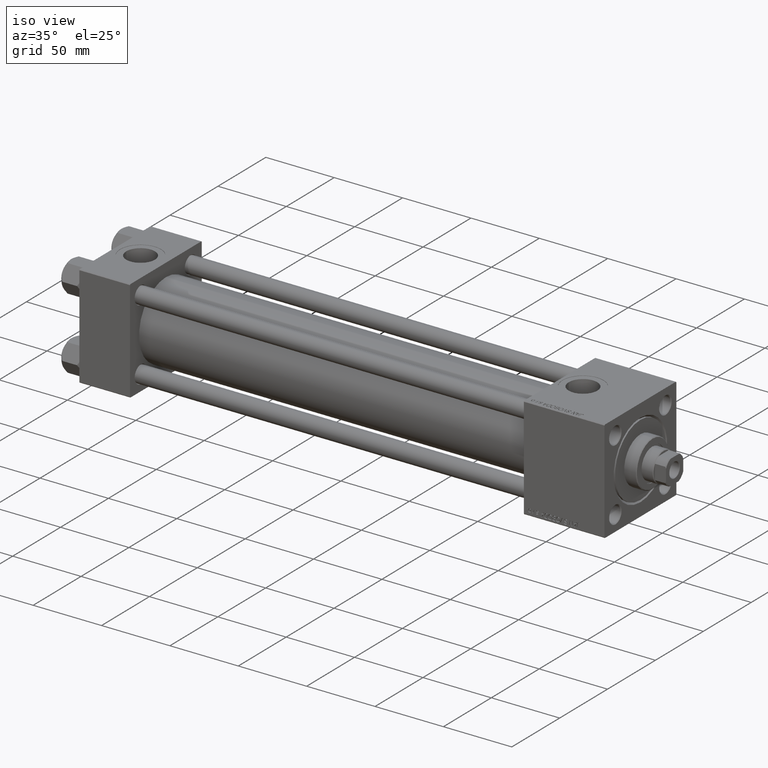
[diagram: clean part render]
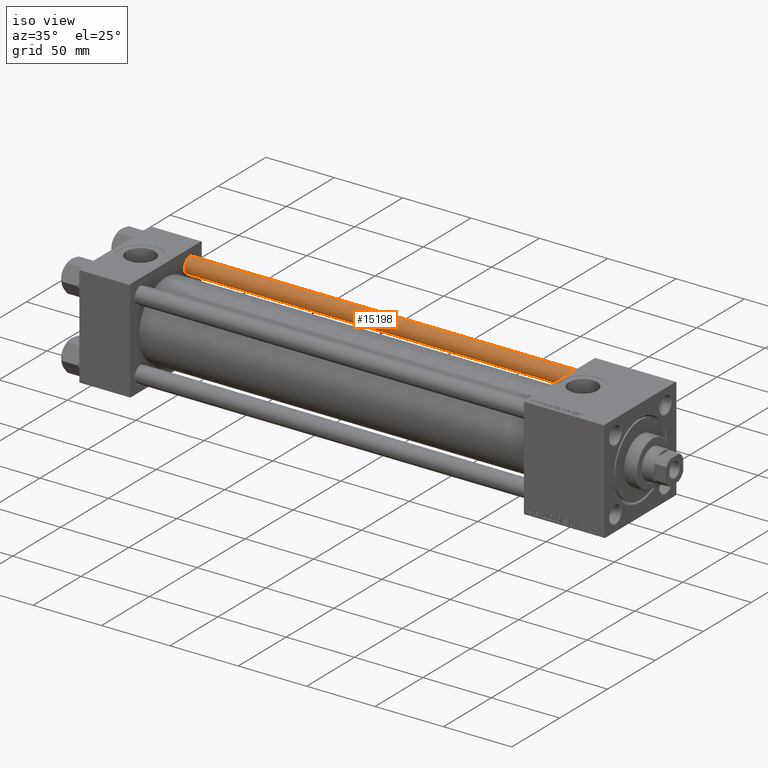
[diagram: same view with one face highlighted and labeled with its STEP entity id]
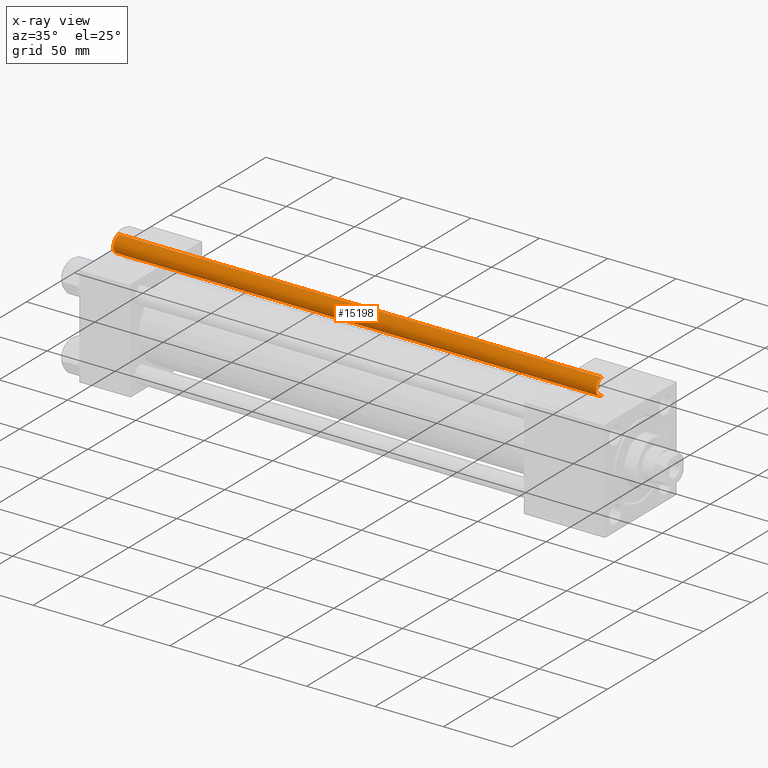
[diagram: x-ray of the same camera — body ghosted, the highlighted face saturated]
A machine part, iso view. The second image highlights one B-rep face of the part: STEP entity #15198.
The next image is the same camera in x-ray: the body ghosted, the highlighted face saturated — about 0% of this face is hidden behind the body in this view.
In plain terms, the highlighted cylindrical surface (edge-blend (fillet) strip) has radius 6 mm, axis along (-1, -0, 0).
Its self-contained STEP definition (entity closure, byte-faithful):
#1119 = ORIENTED_EDGE ( 'NONE', *, *, #40242, .T. ) ;
#2061 = DIRECTION ( 'NONE',  ( -1.000000000000000000, 0.000000000000000000, 0.000000000000000000 ) ) ;
#3376 = CIRCLE ( 'NONE', #31745, 6.000000000000000888 ) ;
#4898 = EDGE_CURVE ( 'NONE', #47759, #5772, #36914, .T. ) ;
#5189 = DIRECTION ( 'NONE',  ( -0.000000000000000000, -0.000000000000000000, -1.000000000000000000 ) ) ;
#5772 = VERTEX_POINT ( 'NONE', #25125 ) ;
#6630 = CARTESIAN_POINT ( 'NONE',  ( 0.000000000000000000, 0.000000000000000000, 354.0000000000000000 ) ) ;
#9657 = CARTESIAN_POINT ( 'NONE',  ( -6.000000000000000888, 0.000000000000000000, 0.5000000000000559552 ) ) ;
#10114 = VERTEX_POINT ( 'NONE', #44934 ) ;
#10438 = FACE_OUTER_BOUND ( 'NONE', #35026, .T. ) ;
#11526 = DIRECTION ( 'NONE',  ( -0.000000000000000000, -0.000000000000000000, 1.000000000000000000 ) ) ;
#12051 = AXIS2_PLACEMENT_3D ( 'NONE', #6630, #25174, #2061 ) ;
#15198 = ADVANCED_FACE ( 'NONE', ( #10438 ), #41373, .T. ) ;
#15644 = CARTESIAN_POINT ( 'NONE',  ( -6.000000000000000888, 0.000000000000000000, 354.0000000000000000 ) ) ;
#20611 = ORIENTED_EDGE ( 'NONE', *, *, #30659, .F. ) ;
#21509 = AXIS2_PLACEMENT_3D ( 'NONE', #33616, #45777, #29323 ) ;
#22435 = DIRECTION ( 'NONE',  ( 1.000000000000000000, 0.000000000000000000, 0.000000000000000000 ) ) ;
#22974 = VECTOR ( 'NONE', #23765, 1000.000000000000000 ) ;
#23765 = DIRECTION ( 'NONE',  ( -0.000000000000000000, -0.000000000000000000, -1.000000000000000000 ) ) ;
#25125 = CARTESIAN_POINT ( 'NONE',  ( -6.000000000000000888, 0.000000000000000000, 353.5000000000000000 ) ) ;
#25174 = DIRECTION ( 'NONE',  ( -0.000000000000000000, -0.000000000000000000, -1.000000000000000000 ) ) ;
#28526 = CARTESIAN_POINT ( 'NONE',  ( 6.000000000000000888, 7.347880794884120722E-16, 354.0000000000000000 ) ) ;
#29323 = DIRECTION ( 'NONE',  ( 1.000000000000000000, 0.000000000000000000, 0.000000000000000000 ) ) ;
#29921 = VECTOR ( 'NONE', #5189, 1000.000000000000000 ) ;
#30500 = ORIENTED_EDGE ( 'NONE', *, *, #44024, .T. ) ;
#30659 = EDGE_CURVE ( 'NONE', #47759, #10114, #35393, .T. ) ;
#30802 = CARTESIAN_POINT ( 'NONE',  ( 0.000000000000000000, 0.000000000000000000, 0.5000000000000559552 ) ) ;
#31116 = LINE ( 'NONE', #15644, #22974 ) ;
#31745 = AXIS2_PLACEMENT_3D ( 'NONE', #30802, #11526, #22435 ) ;
#33616 = CARTESIAN_POINT ( 'NONE',  ( 0.000000000000000000, 0.000000000000000000, 353.5000000000000000 ) ) ;
#35026 = EDGE_LOOP ( 'NONE', ( #20611, #44633, #30500, #1119 ) ) ;
#35393 = LINE ( 'NONE', #28526, #29921 ) ;
#35924 = CARTESIAN_POINT ( 'NONE',  ( 6.000000000000000888, 7.347880794884120722E-16, 353.5000000000000000 ) ) ;
#36914 = CIRCLE ( 'NONE', #21509, 6.000000000000000888 ) ;
#40242 = EDGE_CURVE ( 'NONE', #48106, #10114, #3376, .T. ) ;
#41373 = CYLINDRICAL_SURFACE ( 'NONE', #12051, 6.000000000000000888 ) ;
#44024 = EDGE_CURVE ( 'NONE', #5772, #48106, #31116, .T. ) ;
#44633 = ORIENTED_EDGE ( 'NONE', *, *, #4898, .T. ) ;
#44934 = CARTESIAN_POINT ( 'NONE',  ( 6.000000000000000888, 7.347880794884120722E-16, 0.5000000000000559552 ) ) ;
#45777 = DIRECTION ( 'NONE',  ( 0.000000000000000000, 0.000000000000000000, -1.000000000000000000 ) ) ;
#47759 = VERTEX_POINT ( 'NONE', #35924 ) ;
#48106 = VERTEX_POINT ( 'NONE', #9657 ) ;